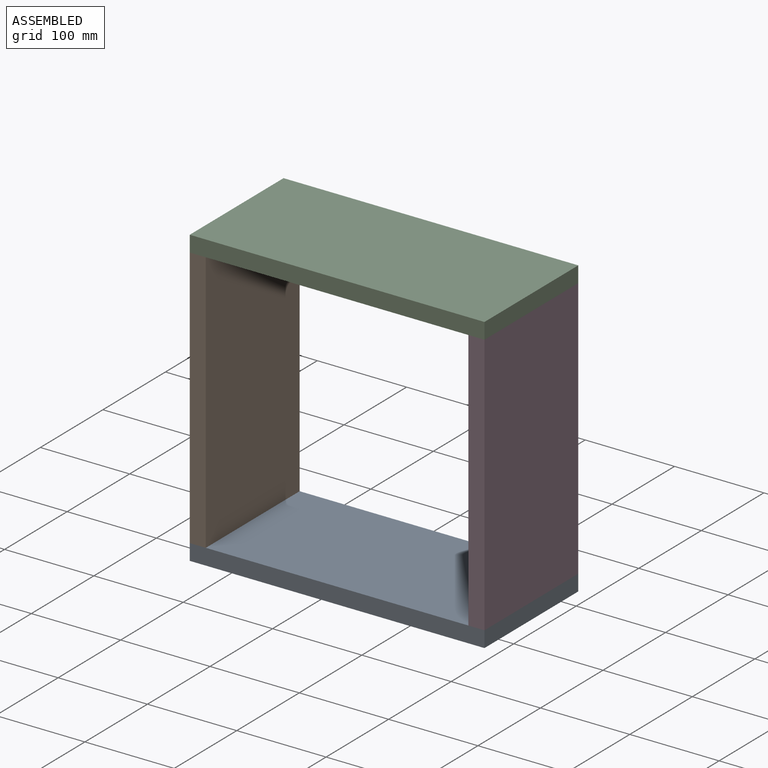
[diagram: assembled view]
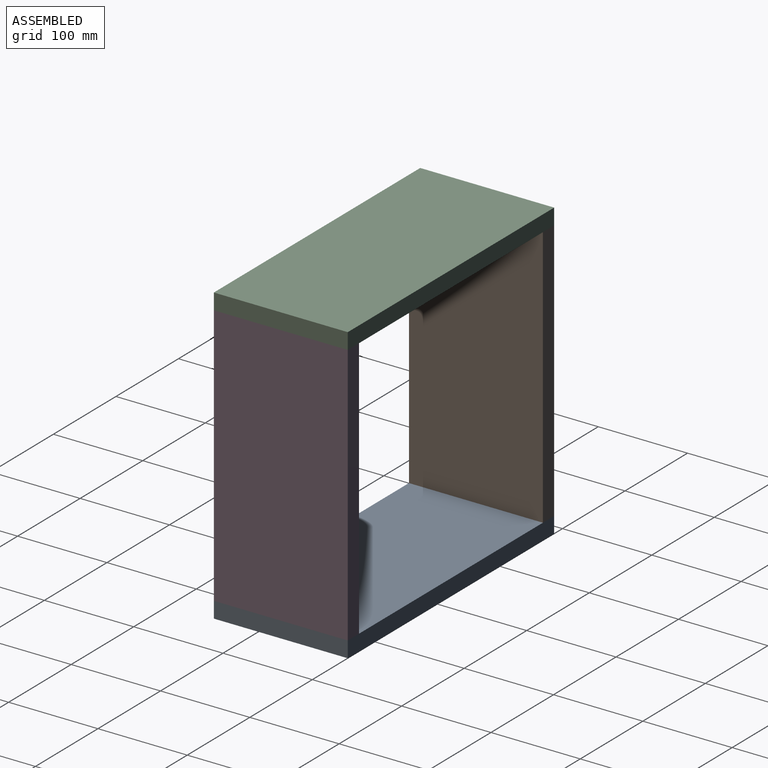
[diagram: assembled view, second angle]
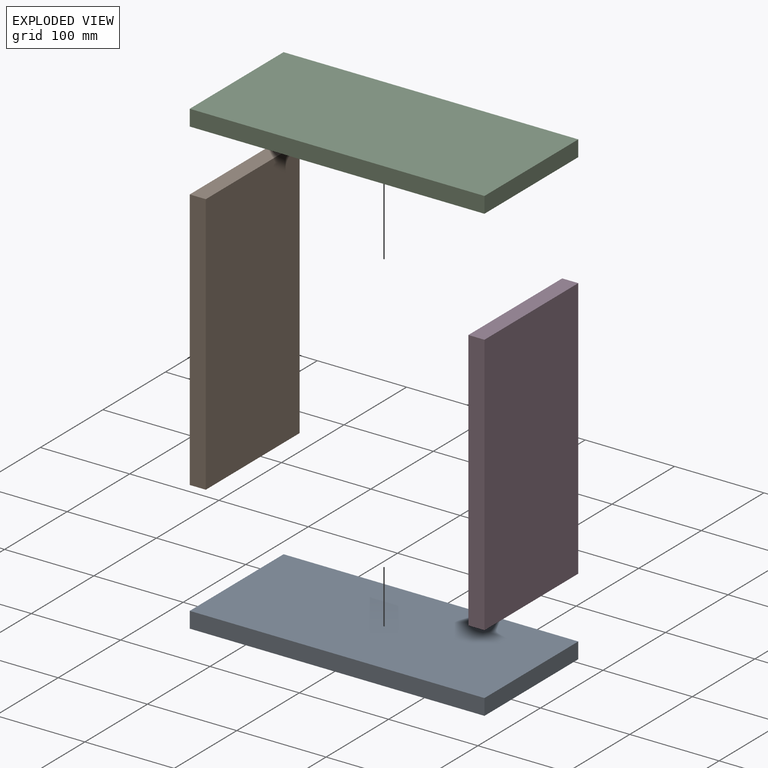
[diagram: exploded view]
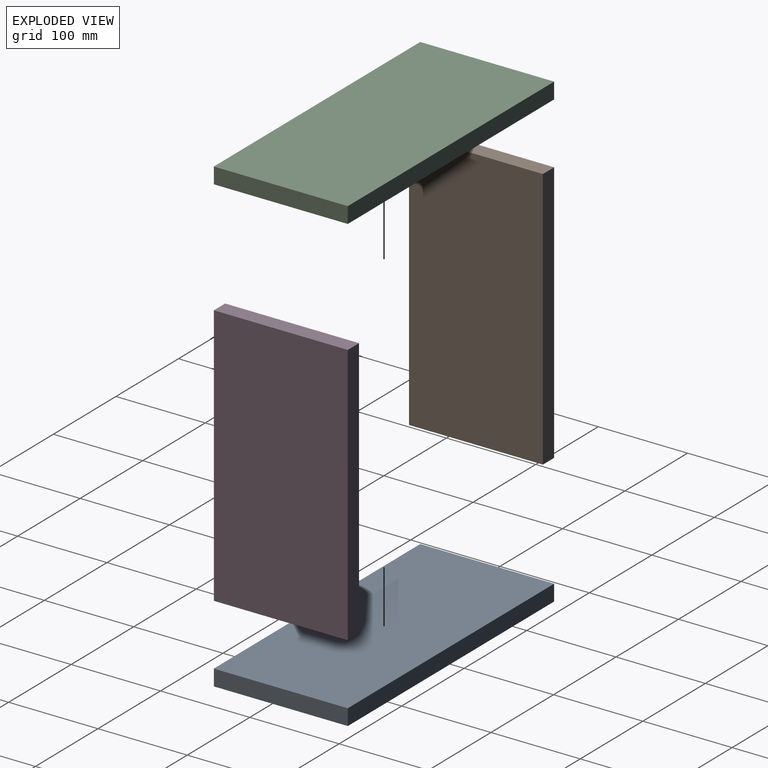
[diagram: exploded view, second angle]
ASSEMBLY  parts=4 mates=3
PART A: 6 faces, bbox 330x150x18 mm
  f0: plane 330x18mm, normal (0,1,0), area 5940mm2, adj f1,f3,f4,f5
  f1: plane 150x18mm, normal (-1,0,0), area 2700mm2, adj f0,f2,f4,f5
  f2: plane 330x18mm, normal (0,-1,0), area 5940mm2, adj f1,f3,f4,f5
  f3: plane 150x18mm, normal (1,0,0), area 2700mm2, adj f0,f2,f4,f5
  f4: plane 330x150mm, normal (0,0,1), area 49500mm2, adj f0,f1,f2,f3
  f5: plane 330x150mm, normal (0,0,-1), area 49500mm2, adj f0,f1,f2,f3
PART B: 6 faces, bbox 18x150x294 mm
  f0: plane 150x18mm, normal (0,0,1), area 2700mm2, adj f1,f3,f4,f5
  f1: plane 294x18mm, normal (0,-1,0), area 5292mm2, adj f0,f2,f4,f5
  f2: plane 150x18mm, normal (0,0,-1), area 2700mm2, adj f1,f3,f4,f5
  f3: plane 294x18mm, normal (0,1,0), area 5292mm2, adj f0,f2,f4,f5
  f4: plane 294x150mm, normal (1,0,0), area 44100mm2, adj f0,f1,f2,f3
  f5: plane 294x150mm, normal (-1,0,0), area 44100mm2, adj f0,f1,f2,f3
PART C: same geometry as A
PART D: same geometry as B
PLACE A t=(36.82,6.4,32.85)mm
PLACE B t=(-153.16,22.99,118.53)mm
PLACE C t=(36.82,6.4,344.85)mm
PLACE D t=(158.84,22.99,118.53)mm
MATE fastened C.f5 <-> B.f0  axis (0,0,-1) through (-153.16,18.57,344.85)mm
MATE fastened D.f2 <-> A.f4  axis (0,0,-1) through (176.84,18.57,50.85)mm
MATE fastened B.f2 <-> A.f4  axis (0,0,-1) through (-153.16,18.57,50.85)mm
